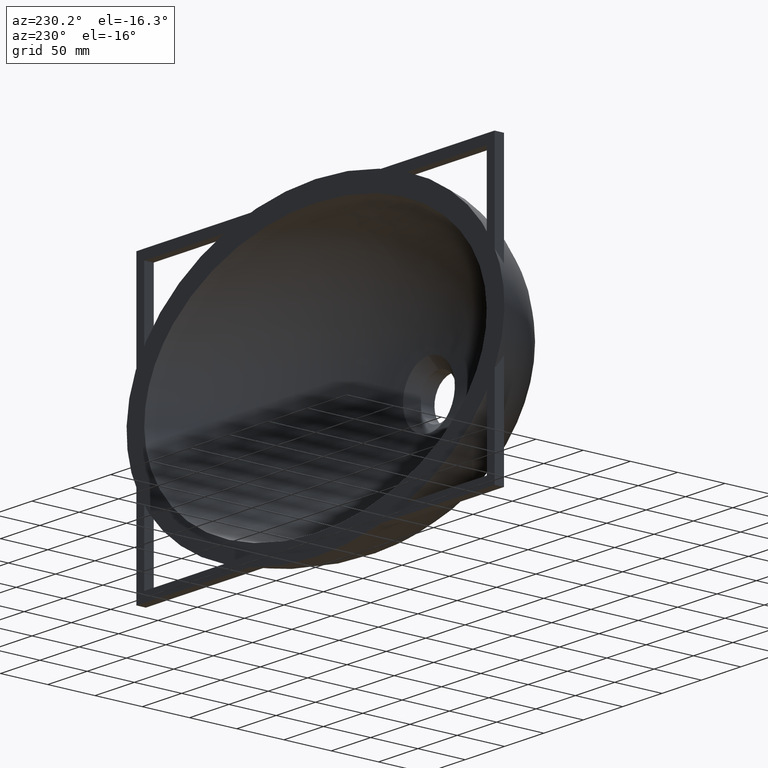
[diagram: clean part render]
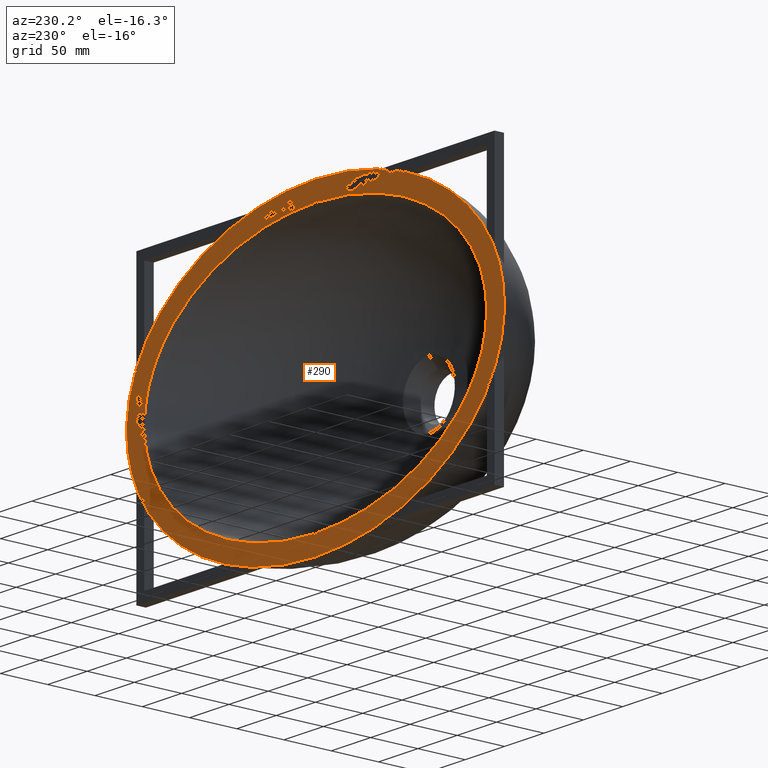
[diagram: same view with one face highlighted and labeled with its STEP entity id]
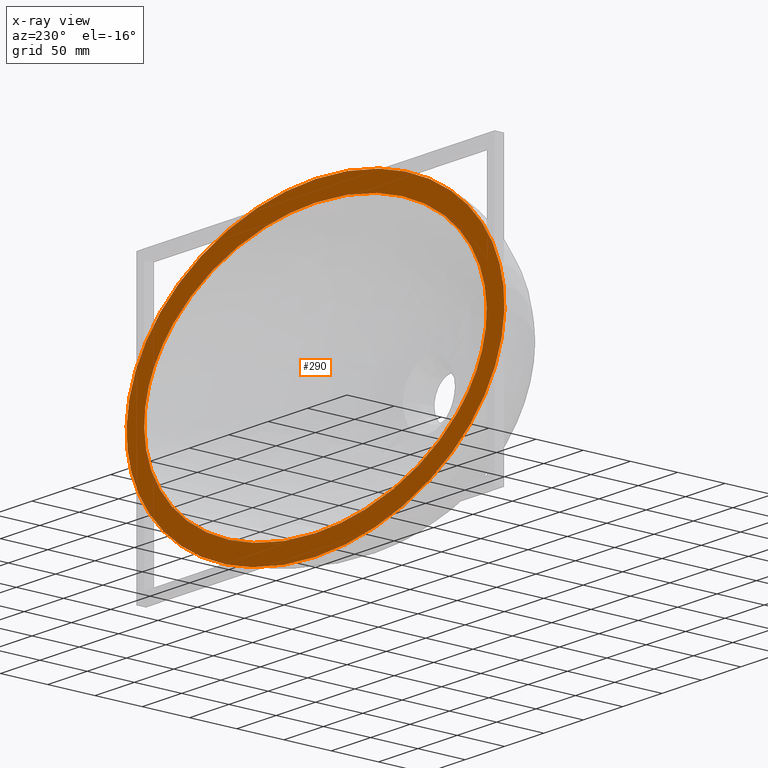
[diagram: x-ray of the same camera — body ghosted, the highlighted face saturated]
A machine part, auxiliary view. The second image highlights one B-rep face of the part: STEP entity #290.
The next image is the same camera in x-ray: the body ghosted, the highlighted face saturated — about 0% of this face is hidden behind the body in this view.
In plain terms, the highlighted planar face has unit normal (0, 1, 0).
Its self-contained STEP definition (entity closure, byte-faithful):
#3 = CARTESIAN_POINT ( 'NONE',  ( -212.4004091137150600, 2.775557561562891400E-014, 36.95796738000058900 ) ) ;
#24 = CARTESIAN_POINT ( 'NONE',  ( -242.8173122997031600, 0.0000000000000000000, -1.994931997373328200E-013 ) ) ;
#26 = VERTEX_POINT ( 'NONE', #2711 ) ;
#39 = CARTESIAN_POINT ( 'NONE',  ( -155.6603527541727500, 0.0000000000000000000, -100.3236698321235100 ) ) ;
#72 = CARTESIAN_POINT ( 'NONE',  ( 109.7819321249633200, 0.0000000000000000000, -122.8334170658575900 ) ) ;
#83 = CARTESIAN_POINT ( 'NONE',  ( -60.78651007786673000, 2.775557561562891400E-014, 135.8147164080128600 ) ) ;
#145 = CARTESIAN_POINT ( 'NONE',  ( -210.3843271333236700, 0.0000000000000000000, -80.70557687257218000 ) ) ;
#162 = CARTESIAN_POINT ( 'NONE',  ( -121.0583653088586100, 0.0000000000000000000, 140.2562180888824300 ) ) ;
#177 = CARTESIAN_POINT ( 'NONE',  ( -63.16299334254601000, 0.0000000000000000000, -156.2435836002702800 ) ) ;
#277 = CARTESIAN_POINT ( 'NONE',  ( -3.158149667104884100, 0.0000000000000000000, 160.0000000000000300 ) ) ;
#290 = ADVANCED_FACE ( 'NONE', ( #773, #1592 ), #2456, .T. ) ;
#300 = CARTESIAN_POINT ( 'NONE',  ( -171.6977681166116000, 0.0000000000000000000, -114.4651787444079100 ) ) ;
#307 = CARTESIAN_POINT ( 'NONE',  ( -190.6906698519774500, 2.775557561562891400E-014, -70.78390841188327400 ) ) ;
#332 = CARTESIAN_POINT ( 'NONE',  ( 234.3653754005939900, 0.0000000000000000000, -42.10866222806018300 ) ) ;
#354 = CARTESIAN_POINT ( 'NONE',  ( -21.05433111452721600, 0.0000000000000000000, -159.9999999999557200 ) ) ;
#409 = VERTEX_POINT ( 'NONE', #2075 ) ;
#425 = CARTESIAN_POINT ( 'NONE',  ( 7.369015889910235400, 0.0000000000000000000, 159.9436537540059600 ) ) ;
#505 = CARTESIAN_POINT ( 'NONE',  ( -190.6906698519857200, 2.775557561562891400E-014, 70.78390841188120000 ) ) ;
#563 = CARTESIAN_POINT ( 'NONE',  ( 210.3843271333236900, 0.0000000000000000000, 80.70557687257205300 ) ) ;
#574 = CARTESIAN_POINT ( 'NONE',  ( 2.864341853724868200, 2.775557561562891400E-014, 140.0000000000000000 ) ) ;
#592 = ORIENTED_EDGE ( 'NONE', *, *, #2789, .F. ) ;
#617 = CARTESIAN_POINT ( 'NONE',  ( -2.775557561562891400E-013, 2.775557561562891400E-014, 140.0000000000000000 ) ) ;
#678 = DIRECTION ( 'NONE',  ( 1.680513367352530500E-015, 1.549048625516608100E-015, -1.000000000000000000 ) ) ;
#679 = CARTESIAN_POINT ( 'NONE',  ( -28.39700889706448100, 0.0000000000000000000, 159.2908634255087700 ) ) ;
#681 = CARTESIAN_POINT ( 'NONE',  ( 234.3653754005939900, 0.0000000000000000000, 42.10866222806029700 ) ) ;
#682 = B_SPLINE_CURVE_WITH_KNOTS ( 'NONE', 3,
 ( #2750, #277, #2262, #679, #721, #162, #1797, #3138, #2364, #24, #1362, #145, #300, #882, #177, #354, #1826 ),
 .UNSPECIFIED., .F., .F.,
 ( 4, 1, 1, 1, 1, 1, 1, 1, 1, 1, 1, 1, 1, 1, 4 ),
 ( 0.0000000000000000000, 0.006249999999987788800, 0.008333333333316903700, 0.04166666666658463300, 0.08333333333316937700, 0.1249999999997538900, 0.1666666666663386400, 0.2083333333329233600, 0.2499999999995078400, 0.2916666666660926400, 0.3333333333326774000, 0.3749999999992621500, 0.4166666666658466200, 0.4583333333324313700, 0.5000000000000000000 ),
 .UNSPECIFIED. ) ;
#686 = CARTESIAN_POINT ( 'NONE',  ( -3.122502256758252800E-013, 0.0000000000000000000, 160.0000000000000300 ) ) ;
#689 = CARTESIAN_POINT ( 'NONE',  ( -155.6603527541845700, 2.775557561562891400E-014, 100.3236698321202200 ) ) ;
#721 = CARTESIAN_POINT ( 'NONE',  ( -67.02268480654207400, 0.0000000000000000000, 155.1777592329617600 ) ) ;
#773 = FACE_BOUND ( 'NONE', #1778, .T. ) ;
#829 = CARTESIAN_POINT ( 'NONE',  ( -2.775557561562891400E-013, 2.775557561562891400E-014, 140.0000000000000000 ) ) ;
#882 = CARTESIAN_POINT ( 'NONE',  ( -121.0583653088579400, 0.0000000000000000000, -140.2562180888824900 ) ) ;
#939 = CARTESIAN_POINT ( 'NONE',  ( 57.28683707410029100, 0.0000000000000000000, -136.7419520754212400 ) ) ;
#945 = CARTESIAN_POINT ( 'NONE',  ( -4.399283321999181700E-010, 0.0000000000000000000, -140.0000000000000300 ) ) ;
#1086 = EDGE_CURVE ( 'NONE', #1699, #409, #2048, .T. ) ;
#1105 = CARTESIAN_POINT ( 'NONE',  ( 171.6977681166116300, 0.0000000000000000000, 114.4651787444078100 ) ) ;
#1130 = CARTESIAN_POINT ( 'NONE',  ( 155.6603527541924400, 0.0000000000000000000, -100.3236698321142300 ) ) ;
#1165 = CARTESIAN_POINT ( 'NONE',  ( 67.02268480654146300, 0.0000000000000000000, 155.1777592329617300 ) ) ;
#1303 = CARTESIAN_POINT ( 'NONE',  ( -19.09561235860753200, 0.0000000000000000000, -139.9999999999605200 ) ) ;
#1362 = CARTESIAN_POINT ( 'NONE',  ( -234.3653754005939900, 0.0000000000000000000, -42.10866222806041000 ) ) ;
#1366 = CARTESIAN_POINT ( 'NONE',  ( 109.7819321249490800, 2.775557561562891400E-014, 122.8334170658613100 ) ) ;
#1370 = AXIS2_PLACEMENT_3D ( 'NONE', #686, #1650, #678 ) ;
#1440 = CARTESIAN_POINT ( 'NONE',  ( 242.8173122997031600, 0.0000000000000000000, 5.204170427930421300E-014 ) ) ;
#1447 = CARTESIAN_POINT ( 'NONE',  ( 21.05433111353305600, 0.0000000000000000000, -160.0000000000443900 ) ) ;
#1476 = CARTESIAN_POINT ( 'NONE',  ( 3.158149667104204200, 0.0000000000000000000, 160.0000000000000300 ) ) ;
#1490 = CARTESIAN_POINT ( 'NONE',  ( 25.75511797340574600, 2.775557561562891400E-014, 139.3847342975666400 ) ) ;
#1565 = CARTESIAN_POINT ( 'NONE',  ( -3.122502256758252800E-013, 0.0000000000000000000, 160.0000000000000300 ) ) ;
#1592 = FACE_OUTER_BOUND ( 'NONE', #3024, .T. ) ;
#1607 = CARTESIAN_POINT ( 'NONE',  ( 121.0583653088580300, 0.0000000000000000000, 140.2562180888825200 ) ) ;
#1609 = ORIENTED_EDGE ( 'NONE', *, *, #1086, .T. ) ;
#1647 = CARTESIAN_POINT ( 'NONE',  ( -3.122502256758252800E-013, 0.0000000000000000000, 160.0000000000000300 ) ) ;
#1650 = DIRECTION ( 'NONE',  ( 0.0000000000000000000, 1.000000000000000000, 1.549048625516608100E-015 ) ) ;
#1663 = ORIENTED_EDGE ( 'NONE', *, *, #2467, .F. ) ;
#1668 = CARTESIAN_POINT ( 'NONE',  ( 190.6906698519895800, 0.0000000000000000000, -70.78390841187659500 ) ) ;
#1687 = CARTESIAN_POINT ( 'NONE',  ( 171.6977681166117400, 0.0000000000000000000, -114.4651787444076900 ) ) ;
#1699 = VERTEX_POINT ( 'NONE', #829 ) ;
#1710 = CARTESIAN_POINT ( 'NONE',  ( 60.78651007786565700, 2.775557561562891400E-014, 135.8147164080114100 ) ) ;
#1711 = EDGE_CURVE ( 'NONE', #409, #1699, #3080, .T. ) ;
#1723 = CARTESIAN_POINT ( 'NONE',  ( -2.775557561562891400E-013, 2.775557561562891400E-014, 140.0000000000000000 ) ) ;
#1778 = EDGE_LOOP ( 'NONE', ( #1609, #2192 ) ) ;
#1780 = CARTESIAN_POINT ( 'NONE',  ( -2.864341853725471700, 2.775557561562891400E-014, 140.0000000000000000 ) ) ;
#1797 = CARTESIAN_POINT ( 'NONE',  ( -171.6977681166120800, 0.0000000000000000000, 114.4651787444076200 ) ) ;
#1826 = CARTESIAN_POINT ( 'NONE',  ( -4.971102840398231000E-010, 0.0000000000000000000, -160.0000000000000300 ) ) ;
#1828 = CARTESIAN_POINT ( 'NONE',  ( 63.16299334163476000, 0.0000000000000000000, -156.2435836005217900 ) ) ;
#1879 = CARTESIAN_POINT ( 'NONE',  ( 190.6906698519815400, 0.0000000000000000000, 70.78390841187840000 ) ) ;
#1922 = CARTESIAN_POINT ( 'NONE',  ( 212.4004091137158200, 0.0000000000000000000, -36.95796737999816600 ) ) ;
#2011 = CARTESIAN_POINT ( 'NONE',  ( 19.09561235772772400, 0.0000000000000000000, -140.0000000000395600 ) ) ;
#2027 = CARTESIAN_POINT ( 'NONE',  ( -220.0497954431437500, 2.775557561562891400E-014, -8.500145032286354800E-014 ) ) ;
#2048 = B_SPLINE_CURVE_WITH_KNOTS ( 'NONE', 3,
 ( #617, #1780, #2429, #2382, #83, #2849, #689, #505, #3, #2027, #2361, #307, #39, #2304, #2151, #1303, #945 ),
 .UNSPECIFIED., .F., .F.,
 ( 4, 1, 1, 1, 1, 1, 1, 1, 1, 1, 1, 1, 1, 1, 4 ),
 ( 0.0000000000000000000, 0.006249999999987788800, 0.008333333333316903700, 0.04166666666658463300, 0.08333333333316937700, 0.1249999999997538900, 0.1666666666663386400, 0.2083333333329233600, 0.2499999999995078400, 0.2916666666660926400, 0.3333333333326774000, 0.3749999999992621500, 0.4166666666658466200, 0.4583333333324313700, 0.5000000000000000000 ),
 .UNSPECIFIED. ) ;
#2075 = CARTESIAN_POINT ( 'NONE',  ( -4.399283321999181700E-010, 0.0000000000000000000, -140.0000000000000300 ) ) ;
#2151 = CARTESIAN_POINT ( 'NONE',  ( -57.28683707490543500, 0.0000000000000000000, -136.7419520751960000 ) ) ;
#2192 = ORIENTED_EDGE ( 'NONE', *, *, #1711, .T. ) ;
#2225 = CARTESIAN_POINT ( 'NONE',  ( 155.6603527541809900, 2.775557561562891400E-014, 100.3236698321173300 ) ) ;
#2257 = CARTESIAN_POINT ( 'NONE',  ( 121.0583653088582000, 0.0000000000000000000, -140.2562180888824300 ) ) ;
#2262 = CARTESIAN_POINT ( 'NONE',  ( -7.369015889910915700, 0.0000000000000000000, 159.9436537540059900 ) ) ;
#2266 = CARTESIAN_POINT ( 'NONE',  ( 212.4004091137117600, 0.0000000000000000000, 36.95796737999869200 ) ) ;
#2279 = CARTESIAN_POINT ( 'NONE',  ( -4.971102840398231000E-010, 0.0000000000000000000, -160.0000000000000300 ) ) ;
#2304 = CARTESIAN_POINT ( 'NONE',  ( -109.7819321249366700, 0.0000000000000000000, -122.8334170658673700 ) ) ;
#2321 = VERTEX_POINT ( 'NONE', #1565 ) ;
#2361 = CARTESIAN_POINT ( 'NONE',  ( -212.4004091137108200, 2.775557561562891400E-014, -36.95796738000139200 ) ) ;
#2364 = CARTESIAN_POINT ( 'NONE',  ( -234.3653754005941000, 0.0000000000000000000, 42.10866222806002700 ) ) ;
#2382 = CARTESIAN_POINT ( 'NONE',  ( -25.75511797340643100, 2.775557561562891400E-014, 139.3847342975672600 ) ) ;
#2408 = CARTESIAN_POINT ( 'NONE',  ( -4.399283321999181700E-010, 0.0000000000000000000, -140.0000000000000300 ) ) ;
#2418 = CARTESIAN_POINT ( 'NONE',  ( 28.39700889706379900, 0.0000000000000000000, 159.2908634255087500 ) ) ;
#2429 = CARTESIAN_POINT ( 'NONE',  ( -6.683464325359003600, 2.775557561562891400E-014, 139.9511292811297700 ) ) ;
#2456 = PLANE ( 'NONE',  #1370 ) ;
#2467 = EDGE_CURVE ( 'NONE', #2321, #26, #682, .T. ) ;
#2521 = B_SPLINE_CURVE_WITH_KNOTS ( 'NONE', 3,
 ( #2279, #1447, #1828, #2257, #1687, #2539, #332, #1440, #681, #563, #1105, #1607, #1165, #2418, #425, #1476, #1647 ),
 .UNSPECIFIED., .F., .F.,
 ( 4, 1, 1, 1, 1, 1, 1, 1, 1, 1, 1, 1, 1, 1, 4 ),
 ( 0.5000000000000000000, 0.5416666666657648000, 0.5833333333325132500, 0.6249999999992620300, 0.6666666666660107100, 0.7083333333327592700, 0.7499999999995079500, 0.7916666666662566200, 0.8333333333330053000, 0.8749999999997539700, 0.9166666666665026500, 0.9583333333332513200, 0.9916666666666502600, 0.9937499999999877000, 1.000000000000000000 ),
 .UNSPECIFIED. ) ;
#2531 = CARTESIAN_POINT ( 'NONE',  ( 220.0497954431431300, 0.0000000000000000000, -6.418476861114186200E-014 ) ) ;
#2539 = CARTESIAN_POINT ( 'NONE',  ( 210.3843271333237200, 0.0000000000000000000, -80.70557687257196700 ) ) ;
#2665 = CARTESIAN_POINT ( 'NONE',  ( 6.683464325358386300, 2.775557561562891400E-014, 139.9511292811295700 ) ) ;
#2711 = CARTESIAN_POINT ( 'NONE',  ( -4.971102840398231000E-010, 0.0000000000000000000, -160.0000000000000300 ) ) ;
#2750 = CARTESIAN_POINT ( 'NONE',  ( -3.122502256758252800E-013, 0.0000000000000000000, 160.0000000000000300 ) ) ;
#2789 = EDGE_CURVE ( 'NONE', #26, #2321, #2521, .T. ) ;
#2849 = CARTESIAN_POINT ( 'NONE',  ( -109.7819321249514100, 2.775557561562891400E-014, 122.8334170658636400 ) ) ;
#3024 = EDGE_LOOP ( 'NONE', ( #1663, #592 ) ) ;
#3080 = B_SPLINE_CURVE_WITH_KNOTS ( 'NONE', 3,
 ( #2408, #2011, #939, #72, #1130, #1668, #1922, #2531, #2266, #1879, #2225, #1366, #1710, #1490, #2665, #574, #1723 ),
 .UNSPECIFIED., .F., .F.,
 ( 4, 1, 1, 1, 1, 1, 1, 1, 1, 1, 1, 1, 1, 1, 4 ),
 ( 0.5000000000000000000, 0.5416666666657648000, 0.5833333333325132500, 0.6249999999992620300, 0.6666666666660107100, 0.7083333333327592700, 0.7499999999995079500, 0.7916666666662566200, 0.8333333333330053000, 0.8749999999997539700, 0.9166666666665026500, 0.9583333333332513200, 0.9916666666666502600, 0.9937499999999877000, 1.000000000000000000 ),
 .UNSPECIFIED. ) ;
#3138 = CARTESIAN_POINT ( 'NONE',  ( -210.3843271333240100, 0.0000000000000000000, 80.70557687257186800 ) ) ;